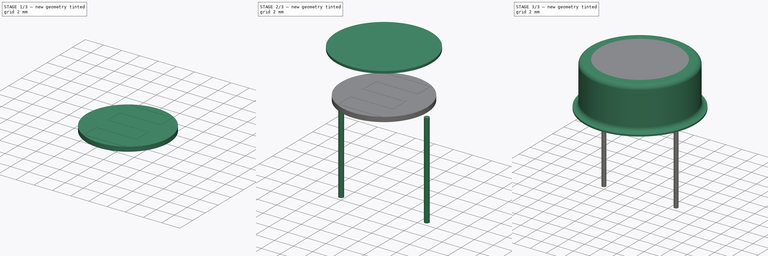
[diagram: build sequence overview — one tinted view per stage of 3, left to right]
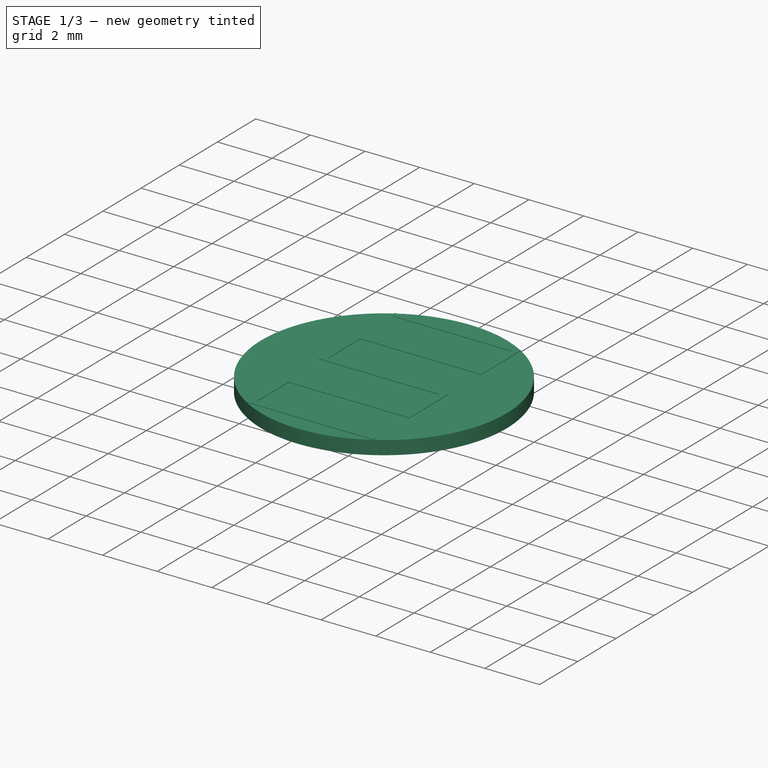
[diagram: stage 1 of 3 — iso view after this stage's code; geometry added in this stage tinted green]
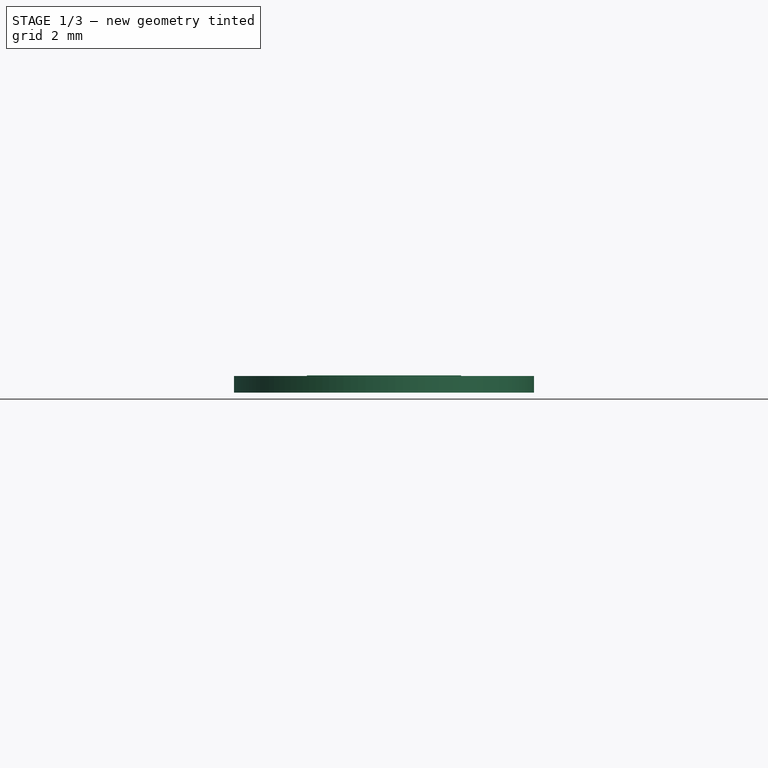
[diagram: stage 1 of 3 — front view after this stage's code; geometry added in this stage tinted green]
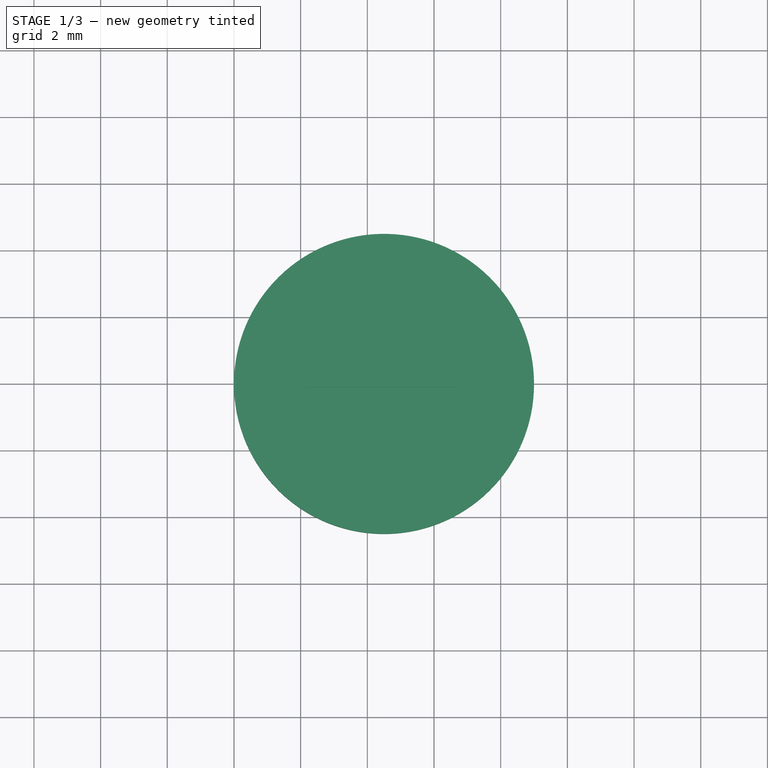
[diagram: stage 1 of 3 — top view after this stage's code; geometry added in this stage tinted green]
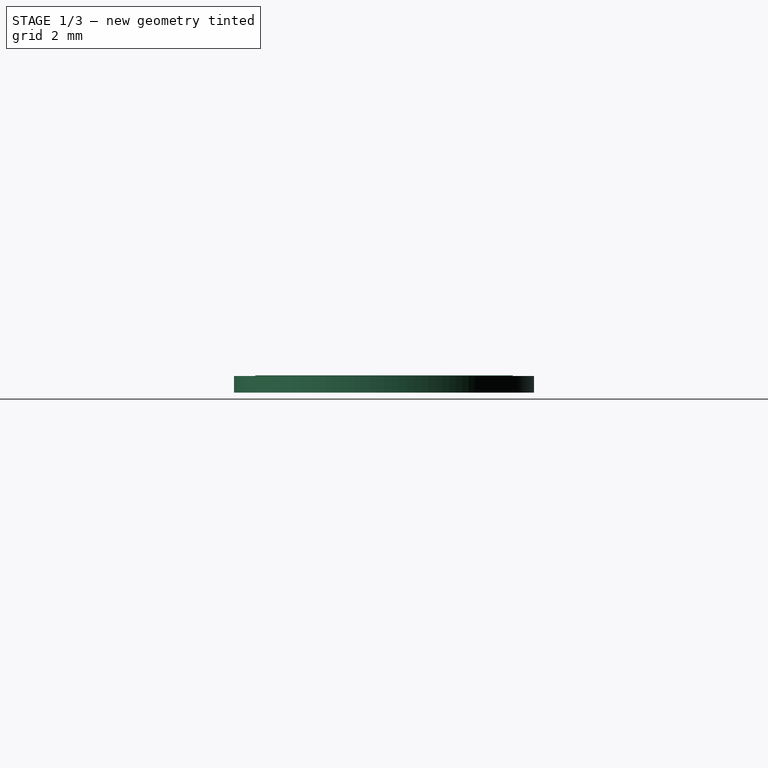
[diagram: stage 1 of 3 — right view after this stage's code; geometry added in this stage tinted green]
FCSTD DOCUMENT  (FreeCAD 0.16R6712 (Git))
Label: R_LDR_D13.8mm_P9.0mm_Vertical
License: All rights reserved
LicenseURL: http://en.wikipedia.org/wiki/All_rights_reserved
objects: Sketcher::SketchObject×5, PartDesign::Pad×3, PartDesign::Revolution×2, Spreadsheet::Sheet×2, Part::MultiFuse×1
note: 16 computed .brp shape members not serialized (recipe doc carries the construction recipe); baked Part::Feature solids carry a one-line shape summary decoded from their .brp

FEATURE [Sketcher::SketchObject] Sketch006
  Placement = pos=(0,0,5.4) rot=(0,0,1;0rad)
  expr: Placement.Base.z = Spreadsheet.pin_upper_length + Spreadsheet.hbottom * 2
  expr: Constraints[2] = Spreadsheet.Dpin / 2
  expr: Constraints[1] = Spreadsheet.DWin / 2 * 0.9
  sketch-geometry (1):
    g0: Circle CenterX=4.5 CenterY=0 CenterZ=0 NormalX=0 NormalY=0 NormalZ=1 Radius=4.5
  constraints (3):
    c: PointOnObject(g0,g-1)
    c: Radius(g0) = 4.5
    c: DistanceX(g-1,g0) = 4.5
FEATURE [PartDesign::Pad] Pad003
  Length = 0.5
  Length2 = 100
  Placement = pos=(0,0,5.4) rot=(0,0,1;0rad)
  Sketch = -> Sketch006
  Type = 0
FEATURE [Sketcher::SketchObject] Sketch002
  Placement = pos=(0,0,5.87) rot=(0,0,1;0rad)
  expr: Constraints[2] = Spreadsheet.DWin / 2 * 0.9
  expr: Constraints[1] = Spreadsheet.Dpin / 2
  expr: Placement.Rotation.Axis.z = Data.Htop
  expr: Placement.Base.z = Spreadsheet.pin_upper_length + Spreadsheet.hbottom * 2 + 0.47
  sketch-geometry (30):
    g0: Circle [constr] CenterX=4.5 CenterY=0 CenterZ=0 NormalX=0 NormalY=0 NormalZ=1 Radius=4.5
    g1: LineSegment StartX=2.188 StartY=3.66065 StartZ=0 EndX=6.612 EndY=3.66065 EndZ=0
    g2: LineSegment StartX=6.612 StartY=3.66065 StartZ=0 EndX=6.612 EndY=1.98033 EndZ=0
    g3: LineSegment StartX=6.612 StartY=1.98033 StartZ=0 EndX=2.188 EndY=1.98033 EndZ=0
    g4: LineSegment StartX=2.188 StartY=1.98033 StartZ=0 EndX=2.188 EndY=-0.1 EndZ=0
    g5: LineSegment StartX=2.188 StartY=-0.1 StartZ=0 EndX=6.612 EndY=-0.1 EndZ=0
    g6: LineSegment StartX=6.612 StartY=-0.1 StartZ=0 EndX=6.612 EndY=-1.78033 EndZ=0
    g7: LineSegment StartX=6.612 StartY=-1.78033 StartZ=0 EndX=2.188 EndY=-1.78033 EndZ=0
    g8: LineSegment StartX=2.188 StartY=-1.78033 StartZ=0 EndX=2.188 EndY=-3.86065 EndZ=0
    g9: LineSegment StartX=2.188 StartY=-3.86065 StartZ=0 EndX=6.812 EndY=-3.86065 EndZ=0
    g10: LineSegment StartX=6.812 StartY=-3.86065 StartZ=0 EndX=6.812 EndY=-3.66065 EndZ=0
    g11: LineSegment StartX=6.812 StartY=-3.66065 StartZ=0 EndX=2.388 EndY=-3.66065 EndZ=0
    g12: LineSegment StartX=2.388 StartY=-3.66065 StartZ=0 EndX=2.388 EndY=-1.98033 EndZ=0
    g13: LineSegment StartX=2.388 StartY=-1.98033 StartZ=0 EndX=6.812 EndY=-1.98033 EndZ=0
    g14: LineSegment StartX=6.812 StartY=-1.98033 StartZ=0 EndX=6.812 EndY=0.1 EndZ=0
    g15: LineSegment StartX=6.812 StartY=0.1 StartZ=0 EndX=2.388 EndY=0.1 EndZ=0
    g16: LineSegment StartX=2.388 StartY=0.1 StartZ=0 EndX=2.388 EndY=1.78033 EndZ=0
    g17: LineSegment StartX=2.388 StartY=1.78033 StartZ=0 EndX=6.812 EndY=1.78033 EndZ=0
    g18: LineSegment StartX=6.812 StartY=1.78033 StartZ=0 EndX=6.812 EndY=3.86065 EndZ=0
    g19: LineSegment StartX=6.812 StartY=3.86065 StartZ=0 EndX=2.188 EndY=3.86065 EndZ=0
    g20: LineSegment StartX=2.188 StartY=3.66065 StartZ=0 EndX=2.188 EndY=3.86065 EndZ=0
    g21: LineSegment [constr] StartX=2.188 StartY=3.66065 StartZ=0 EndX=2.188 EndY=-3.86065 EndZ=0
    g22: LineSegment [constr] StartX=6.812 StartY=3.86065 StartZ=0 EndX=6.812 EndY=-3.86065 EndZ=0
    g23: LineSegment [constr] StartX=2.388 StartY=1.78033 StartZ=0 EndX=2.388 EndY=1.98033 EndZ=0
    g24: LineSegment [constr] StartX=3.13231 StartY=-1.98033 StartZ=0 EndX=3.13231 EndY=-1.78033 EndZ=0
    g25: LineSegment [constr] StartX=6.612 StartY=-1.78033 StartZ=0 EndX=6.812 EndY=-1.78033 EndZ=0
    g26: LineSegment [constr] StartX=2.388 StartY=-1.98033 StartZ=0 EndX=2.188 EndY=-1.98033 EndZ=0
    g27: LineSegment [constr] StartX=2.388 StartY=0.1 StartZ=0 EndX=2.388 EndY=-0.1 EndZ=0
    g28: LineSegment [constr] StartX=2.388 StartY=0.1 StartZ=0 EndX=2.188 EndY=0.1 EndZ=0
    g29: LineSegment [constr] StartX=6.612 StartY=1.98033 StartZ=0 EndX=6.812 EndY=1.98033 EndZ=0
  constraints (88):
    c: PointOnObject(g0,g-1)
    c: DistanceX(g-1,g0) = 4.5
    c: Radius(g0) = 4.5
    c: Horizontal(g1)
    c: Coincident(g2,g1)
    c: Vertical(g2)
    c: Coincident(g3,g2)
    c: Horizontal(g3)
    c: Vertical(g4)
    c: Horizontal(g5)
    c: Coincident(g6,g5)
    c: Vertical(g6)
    c: Horizontal(g7)
    c: Vertical(g8)
    c: PointOnObject(g9,g0)
    c: Horizontal(g9)
    c: Coincident(g8,g9)
    c: Coincident(g6,g7)
    c: Coincident(g3,g4)
    c: Coincident(g4,g5)
    c: Coincident(g7,g8)
    c: Coincident(g10,g9)
    c: Vertical(g10)
    c: Coincident(g11,g10)
    c: Horizontal(g11)
    c: Coincident(g12,g11)
    c: Horizontal(g13)
    c: Coincident(g14,g13)
    c: Vertical(g14)
    c: Coincident(g15,g14)
    c: Horizontal(g15)
    c: Coincident(g16,g15)
    c: Vertical(g16)
    c: Coincident(g17,g16)
    c: Horizontal(g17)
    c: Coincident(g18,g17)
    c: Vertical(g18)
    c: Coincident(g19,g18)
    c: PointOnObject(g19,g0)
    c: Horizontal(g19)
    c: Coincident(g20,g19)
    c: Coincident(g1,g20)
    c: Vertical(g20)
    c: Equal(g20,g10)
    c: Coincident(g12,g13)
    c: Vertical(g12)
    c: Coincident(g21,g8)
    c: Vertical(g21)
    c: PointOnObject(g8,g0)
    c: PointOnObject(g4,g21)
    c: Coincident(g22,g18)
    c: Vertical(g22)
    c: Coincident(g9,g22)
    c: PointOnObject(g18,g0)
    c: PointOnObject(g14,g22)
    c: Coincident(g23,g16)
    c: PointOnObject(g23,g3)
    c: Vertical(g23)
    c: Vertical(g24)
    c: Coincident(g25,g6)
    c: Horizontal(g25)
    c: Coincident(g26,g12)
    c: PointOnObject(g26,g8)
    c: Horizontal(g26)
    c: Equal(g23,g20)
    c: Coincident(g1,g21)
    c: Coincident(g27,g15)
    c: PointOnObject(g27,g5)
    c: Vertical(g27)
    c: Coincident(g28,g15)
    c: PointOnObject(g28,g4)
    c: Horizontal(g28)
    c: Equal(g28,g27)
    c: Equal(g27,g23)
    c: Equal(g25,g26)
    c: Equal(g26,g24)
    c: Equal(g24,g23)
    c: PointOnObject(g25,g14)
    c: PointOnObject(g24,g7)
    c: PointOnObject(g24,g13)
    c: Equal(g2,g16)
    c: Equal(g16,g6)
    c: Equal(g12,g6)
    c: DistanceY(g20,g20) = 0.2
    c: Coincident(g29,g2)
    c: PointOnObject(g29,g18)
    c: Horizontal(g29)
    c: Equal(g29,g20)
FEATURE [Spreadsheet::Sheet] Spreadsheet001  label="Data"
  cells = A1=W; B1(Wid)=5.1; A2=H; B2(H)=4.3; A3=D; B3(D)=1.5; A4=Dwire; B4(DWire)=0.5; A5=RM; B5(RM)=3.4; A6=Htop; B6(Htop)=4; A7=Hbottom; B7(Hbottom)=3; A8=DOuter; B8(DOuter)=5.1; A9=DStructure; B9(DStructure)=0.1
FEATURE [PartDesign::Pad] Pad002
  Length = 0.05
  Length2 = 100
  Placement = pos=(0,0,5.87) rot=(0,0,1;0rad)
  Sketch = -> Sketch002
  Type = 0
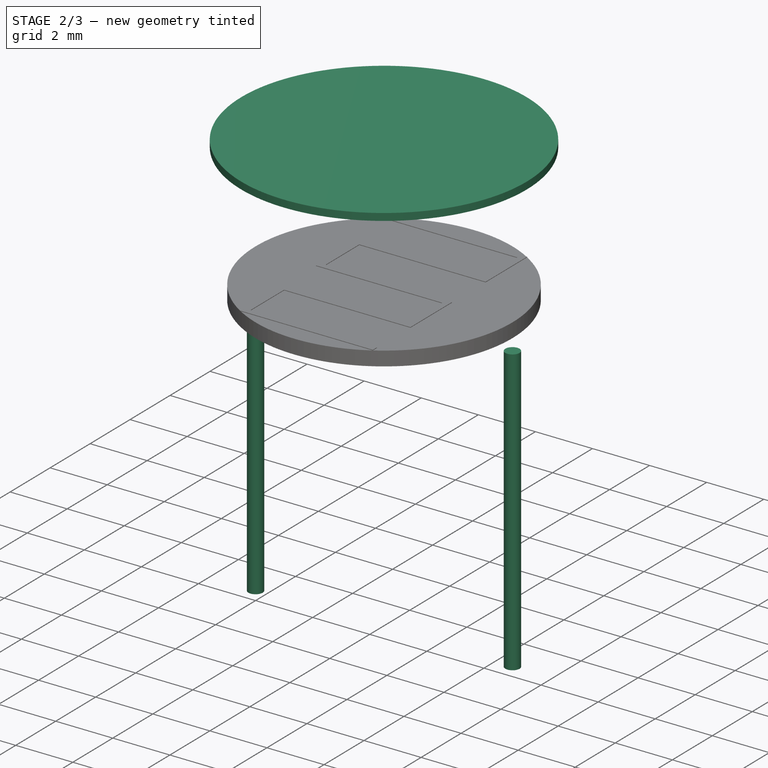
[diagram: stage 2 of 3 — iso view after this stage's code; geometry added in this stage tinted green]
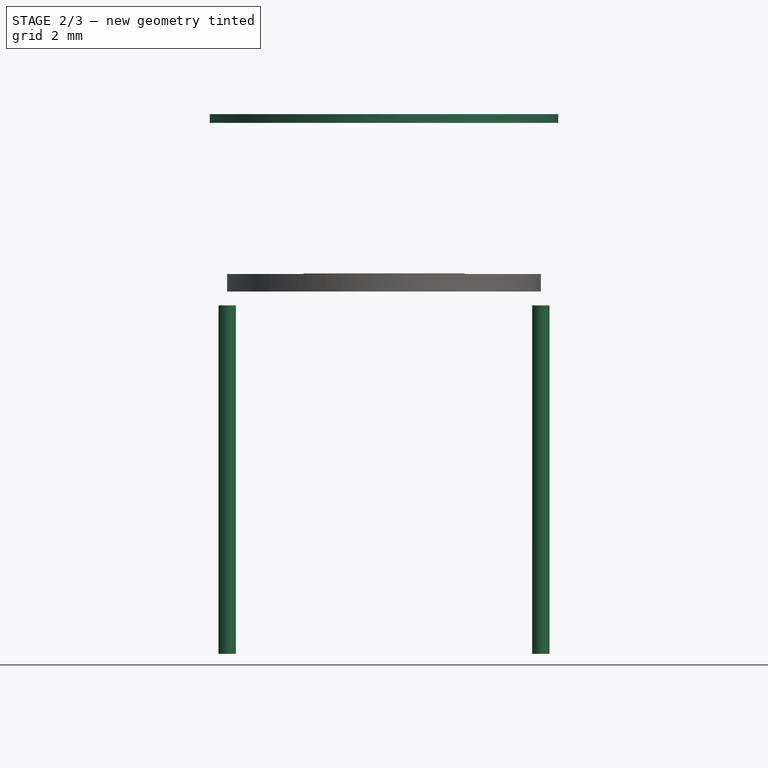
[diagram: stage 2 of 3 — front view after this stage's code; geometry added in this stage tinted green]
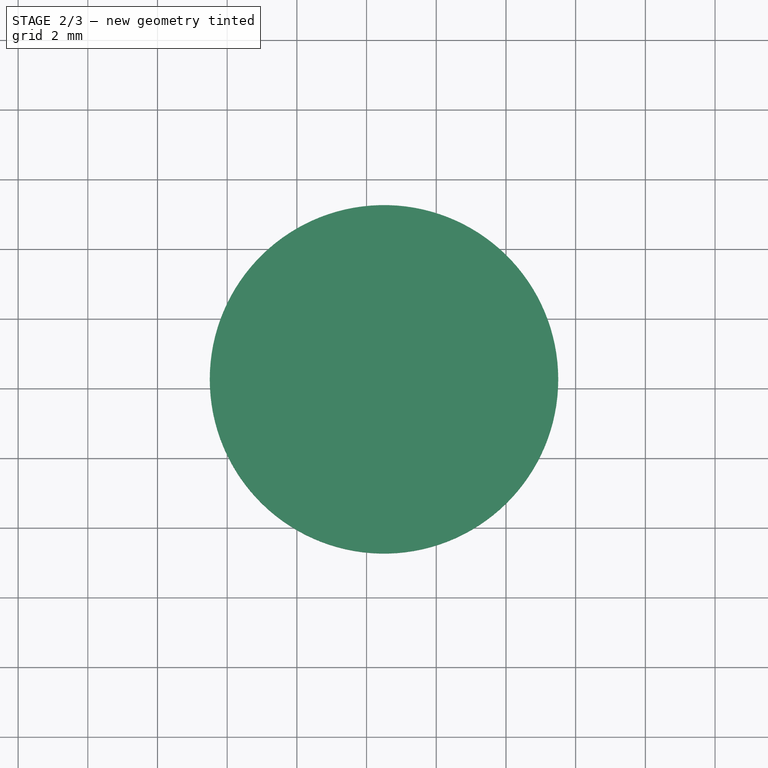
[diagram: stage 2 of 3 — top view after this stage's code; geometry added in this stage tinted green]
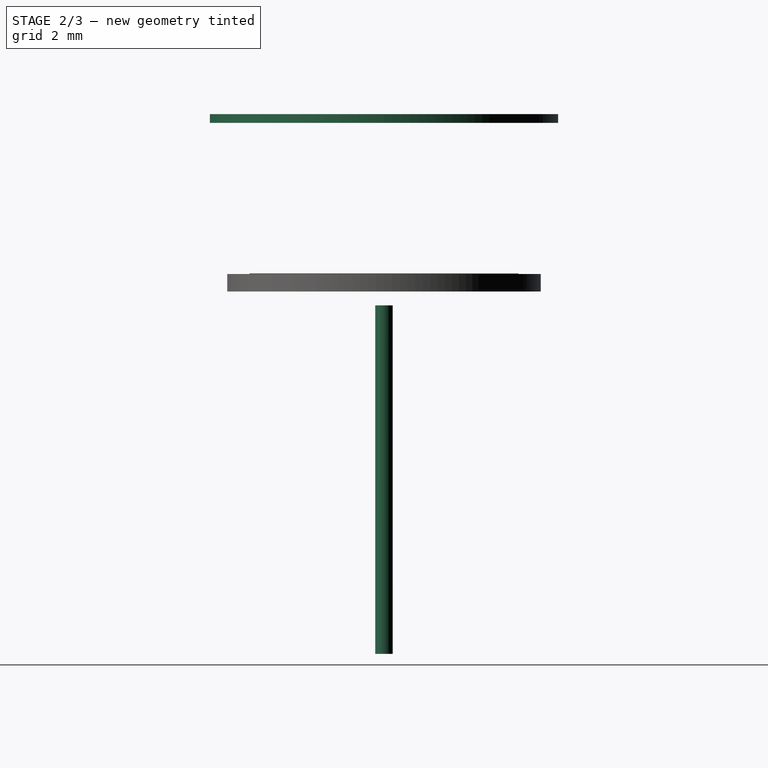
[diagram: stage 2 of 3 — right view after this stage's code; geometry added in this stage tinted green]
FEATURE [Spreadsheet::Sheet] Spreadsheet  label="dims"
  cells = A1=bottom diameter; B1(DBot)=13.8; A2=top diameter; B2(DTop)=12.6; A3=pin diameter; B3(Dpin)=9; A4=height; B4(height)=5.5; A5=nible; B5(nibble_w)=0.86; C5(nibble_l)=1; A6=pin diameter; B6(pin_diameter)=0.5; A7=pin length; B7(pin_length)=8; A8=pin upper length; B8(pin_upper_length)=5; A9=diameter window; B9(DWin)=10; A10=hbottom; B10(hbottom)=0.2
FEATURE [Sketcher::SketchObject] Sketch005
  Placement = pos=(0,0,0) rot=(1,0,0;1.5708rad)
  expr: Constraints[13] = Spreadsheet.height + Spreadsheet.pin_upper_length - 0.01
  expr: Constraints[11] = dims.DWin / 2
  expr: Constraints[1] = dims.Dpin / 2
  sketch-geometry (5):
    g0: LineSegment [constr] StartX=4.5 StartY=7.55084 StartZ=0 EndX=4.5 EndY=16.6002 EndZ=0
    g1: LineSegment StartX=4.5 StartY=10.49 StartZ=0 EndX=-0.5 EndY=10.49 EndZ=0
    g2: LineSegment StartX=-0.5 StartY=10.49 StartZ=0 EndX=-0.5 EndY=10.24 EndZ=0
    g3: LineSegment StartX=-0.5 StartY=10.24 StartZ=0 EndX=4.5 EndY=10.24 EndZ=0
    g4: LineSegment StartX=4.5 StartY=10.24 StartZ=0 EndX=4.5 EndY=10.49 EndZ=0
  constraints (14):
    c: Vertical(g0)
    c: DistanceX(g-1,g0) = 4.5
    c: Coincident(g1,g2)
    c: Coincident(g2,g3)
    c: Coincident(g3,g4)
    c: Coincident(g4,g1)
    c: Horizontal(g1)
    c: Horizontal(g3)
    c: Vertical(g2)
    c: Vertical(g4)
    c: PointOnObject(g1,g0)
    c: DistanceX(g1,g1) = 5
    c: DistanceY(g2,g2) = 0.25
    c: DistanceY(g-1,g1) = 10.49
FEATURE [PartDesign::Revolution] Revolution001
  Angle = 360
  Axis = (0,0,9.04933)
  Base = (4.5,0,7.55084)
  Placement = pos=(0,0,0) rot=(1,0,0;1.5708rad)
  ReferenceAxis = -> Sketch005 [Axis0]
  Sketch = -> Sketch005
FEATURE [PartDesign::Pad] Pad
  Length = 10
  Length2 = 100
  Placement = pos=(0,0,5) rot=(0,0,1;0rad)
  Reversed = true
  Sketch = -> Sketch
  Type = 0
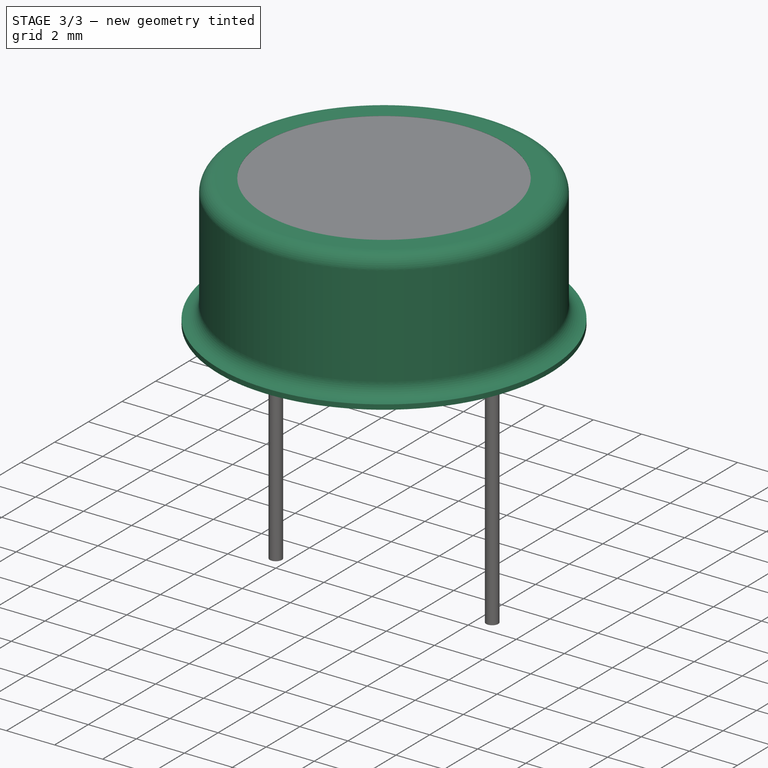
[diagram: stage 3 of 3 — iso view after this stage's code; geometry added in this stage tinted green]
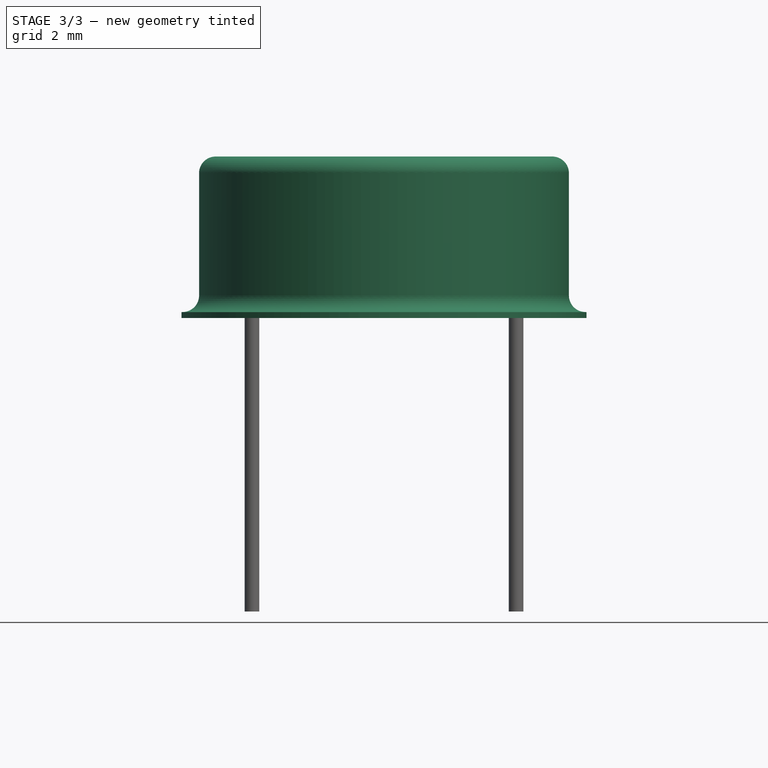
[diagram: stage 3 of 3 — front view after this stage's code; geometry added in this stage tinted green]
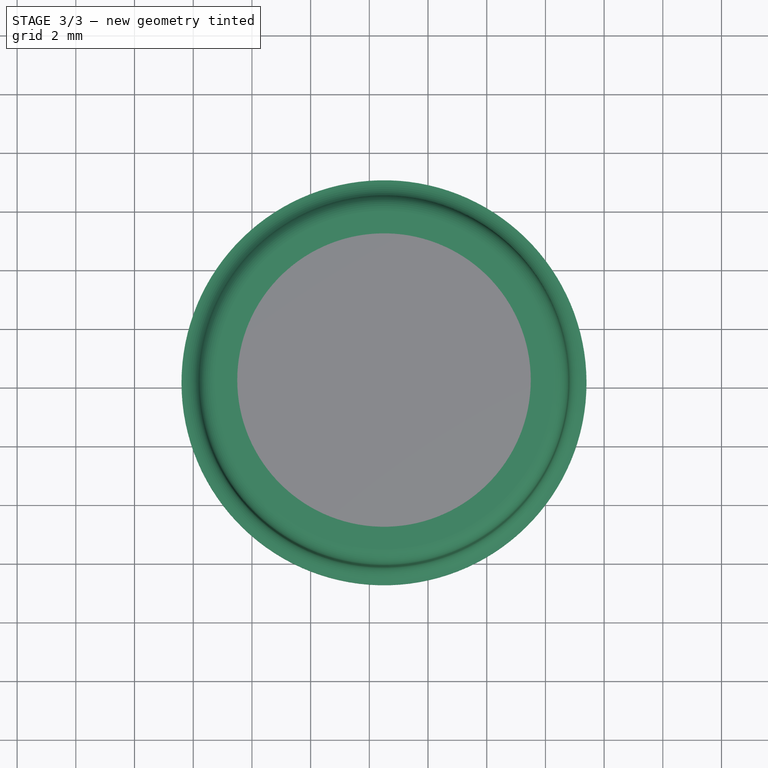
[diagram: stage 3 of 3 — top view after this stage's code; geometry added in this stage tinted green]
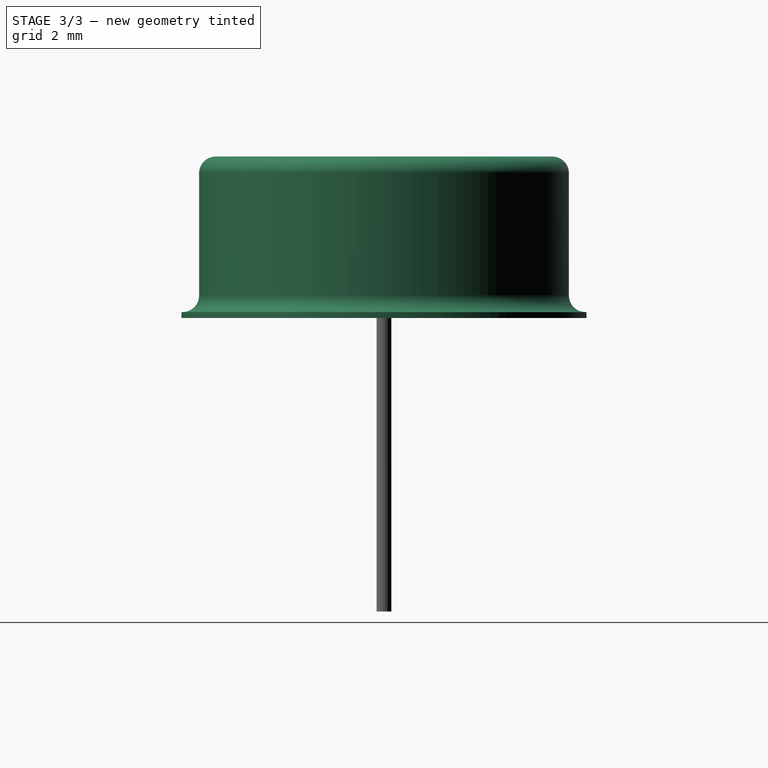
[diagram: stage 3 of 3 — right view after this stage's code; geometry added in this stage tinted green]
FEATURE [Sketcher::SketchObject] Sketch
  Placement = pos=(0,0,5) rot=(0,0,1;0rad)
  expr: Constraints[4] = Spreadsheet.Dpin
  expr: Constraints[1] = Spreadsheet.pin_diameter / 2
  sketch-geometry (2):
    g0: Circle CenterX=0 CenterY=0 CenterZ=0 NormalX=0 NormalY=0 NormalZ=1 Radius=0.25
    g1: Circle CenterX=9 CenterY=0 CenterZ=0 NormalX=0 NormalY=0 NormalZ=1 Radius=0.25
  constraints (5):
    c: Coincident(g0,g-1)
    c: Radius(g0) = 0.25
    c: Equal(g1,g0)
    c: PointOnObject(g1,g-1)
    c: DistanceX(g-1,g1) = 9
FEATURE [Sketcher::SketchObject] Sketch003
  Placement = pos=(0,0,0) rot=(1,0,0;1.5708rad)
  expr: Constraints[27] = Spreadsheet.hbottom * 2
  expr: Constraints[7] = Spreadsheet.hbottom
  expr: Constraints[26] = Spreadsheet.height
  expr: Constraints[14] = Spreadsheet.DTop / 2
  expr: Constraints[28] = Spreadsheet.DWin / 2
  expr: Constraints[8] = Spreadsheet.DBot / 2
  expr: Constraints[1] = Spreadsheet.Dpin / 2
  expr: Constraints[3] = Spreadsheet.pin_upper_length
  sketch-geometry (12):
    g0: LineSegment [constr] StartX=4.5 StartY=2.55067 StartZ=0 EndX=4.5 EndY=11.6 EndZ=0
    g1: LineSegment StartX=4.5 StartY=5 StartZ=0 EndX=-2.4 EndY=5 EndZ=0
    g2: LineSegment StartX=-2.4 StartY=5 StartZ=0 EndX=-2.4 EndY=5.2 EndZ=0
    g3: LineSegment StartX=4.5 StartY=11.6 StartZ=0 EndX=4.5 EndY=5 EndZ=0
    g4: LineSegment StartX=-2.4 StartY=5.2 StartZ=0 EndX=-2.33448 EndY=5.20344 EndZ=0
    g5: LineSegment StartX=-1.8 StartY=5.76676 StartZ=0 EndX=-1.8 EndY=9.93777 EndZ=0
    g6: ArcOfCircle CenterX=-1.2359 CenterY=9.93777 CenterZ=0 NormalX=0 NormalY=0 NormalZ=1 Radius=0.564098 StartAngle=1.48934 EndAngle=3.14159
    g7: ArcOfCircle CenterX=-2.3641 CenterY=5.76676 CenterZ=0 NormalX=0 NormalY=0 NormalZ=1 Radius=0.564098 StartAngle=4.76491 EndAngle=6.28319
    g8: LineSegment StartX=-1.19 StartY=10.5 StartZ=0 EndX=-0.5 EndY=10.5 EndZ=0
    g9: LineSegment StartX=-0.5 StartY=10.5 StartZ=0 EndX=-0.5 EndY=5.4 EndZ=0
    g10: LineSegment StartX=-0.5 StartY=5.4 StartZ=0 EndX=4.5 EndY=5.4 EndZ=0
    g11: LineSegment StartX=4.5 StartY=5.4 StartZ=0 EndX=4.5 EndY=5 EndZ=0
  constraints (30):
    c: Vertical(g0)
    c: DistanceX(g-1,g0) = 4.5
    c: Horizontal(g1)
    c: DistanceY(g-1,g1) = 5
    c: Coincident(g2,g1)
    c: Vertical(g2)
    c: Coincident(g3,g1)
    c: DistanceY(g2,g2) = 0.2
    c: DistanceX(g1,g1) = 6.9
    c: Coincident(g4,g2)
    c: Vertical(g5)
    c: Tangent(g5,g6) = 1.5708
    c: Tangent(g4,g7) = -1.5708
    c: Tangent(g5,g7) = -1.5708
    c: DistanceX(g5,g0) = 6.3
    c: Vertical(g3)
    c: Coincident(g0,g3)
    c: Coincident(g8,g6)
    c: Horizontal(g8)
    c: Coincident(g9,g8)
    c: Vertical(g9)
    c: Coincident(g10,g9)
    c: PointOnObject(g10,g0)
    c: Horizontal(g10)
    c: Coincident(g11,g10)
    c: Coincident(g11,g1)
    c: DistanceY(g1,g8) = 5.5
    c: DistanceY(g1,g9) = 0.4
    c: DistanceX(g8,g0) = 5
    c: Equal(g7,g6)
FEATURE [PartDesign::Revolution] Revolution
  Angle = 360
  Axis = (0,0,9.04933)
  Base = (4.5,0,2.55067)
  Placement = pos=(0,0,0) rot=(1,0,0;1.5708rad)
  ReferenceAxis = -> Sketch003 [Axis0]
  Sketch = -> Sketch003
FEATURE [Part::MultiFuse] Pad002_mp_cp  label="R_LDR_D13.8mm_P9.0mm_Vertical"
  Shapes = -> [Pad002,Revolution,Pad003,Pad,Revolution001]
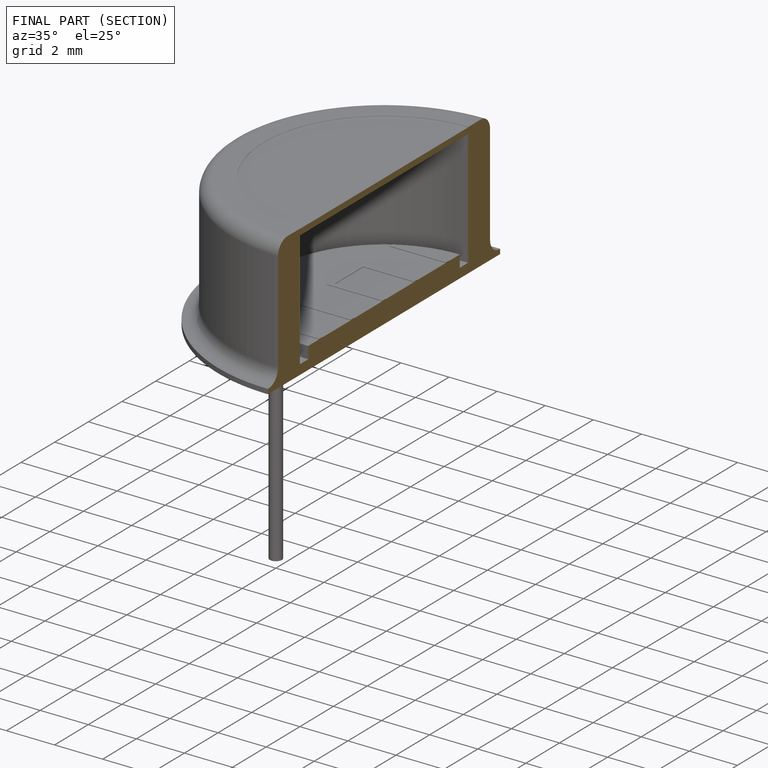
[diagram: finished part — half-section view (interior)]
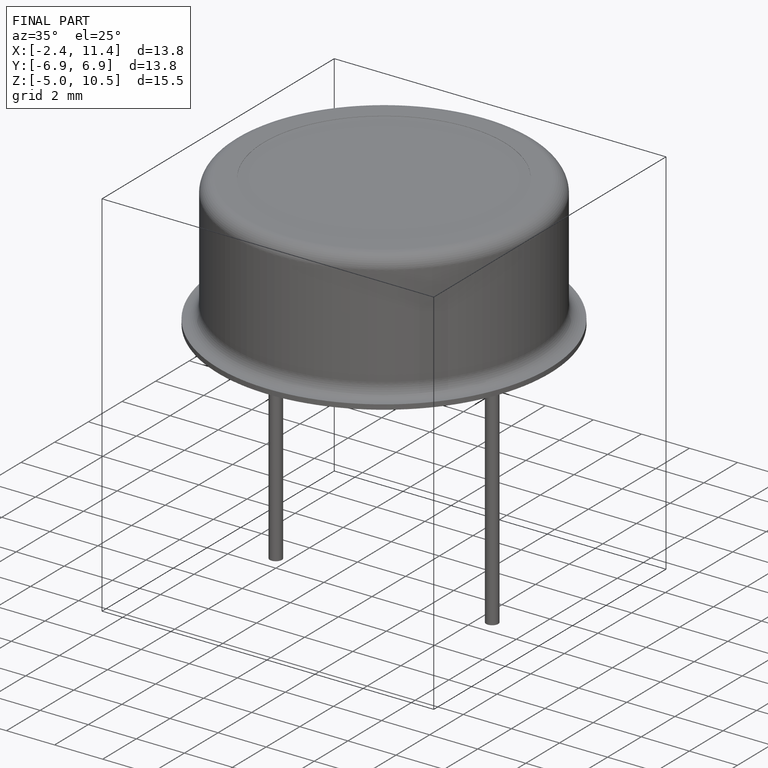
[diagram: finished part — iso view with bounding-box wireframe]
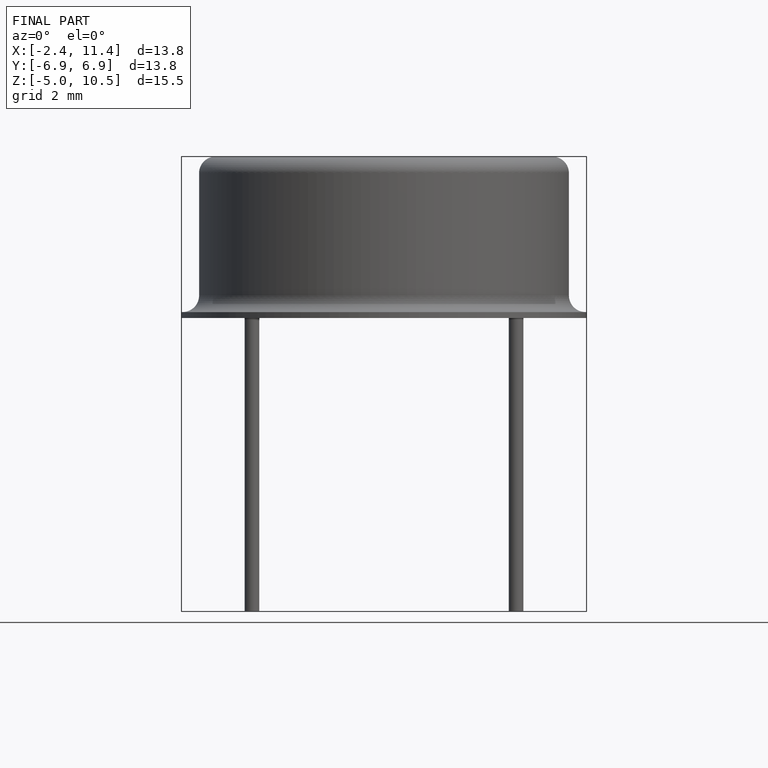
[diagram: finished part — front view with bounding-box wireframe]
